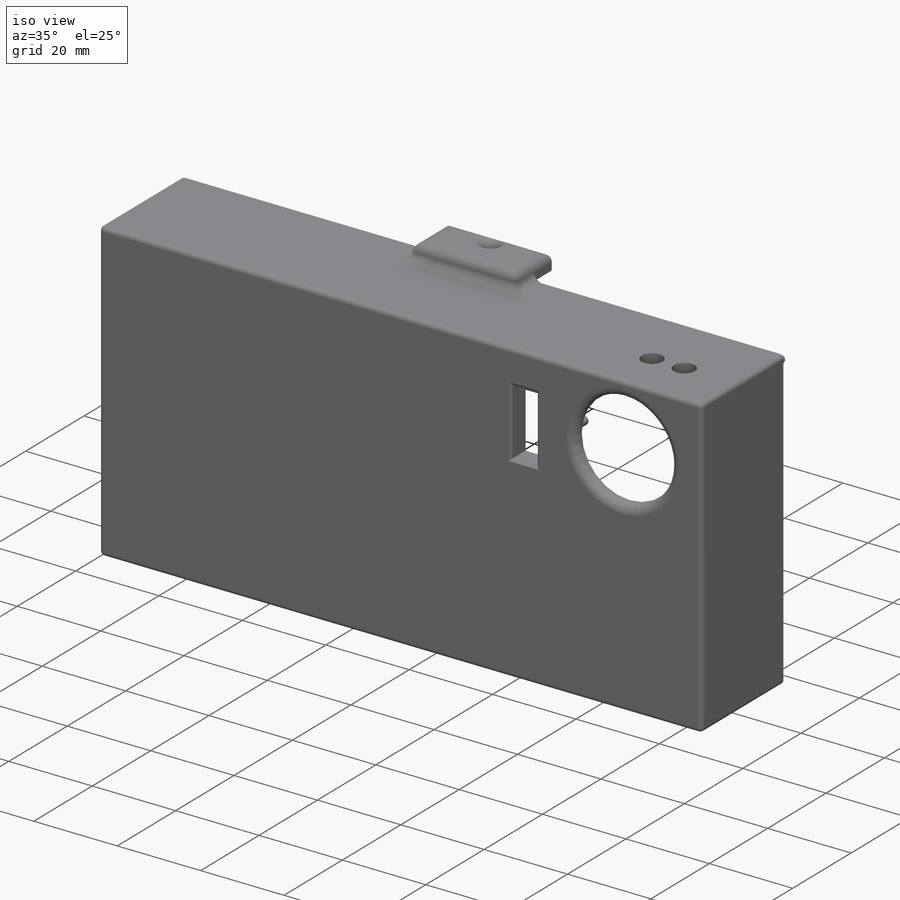
[diagram: iso view]
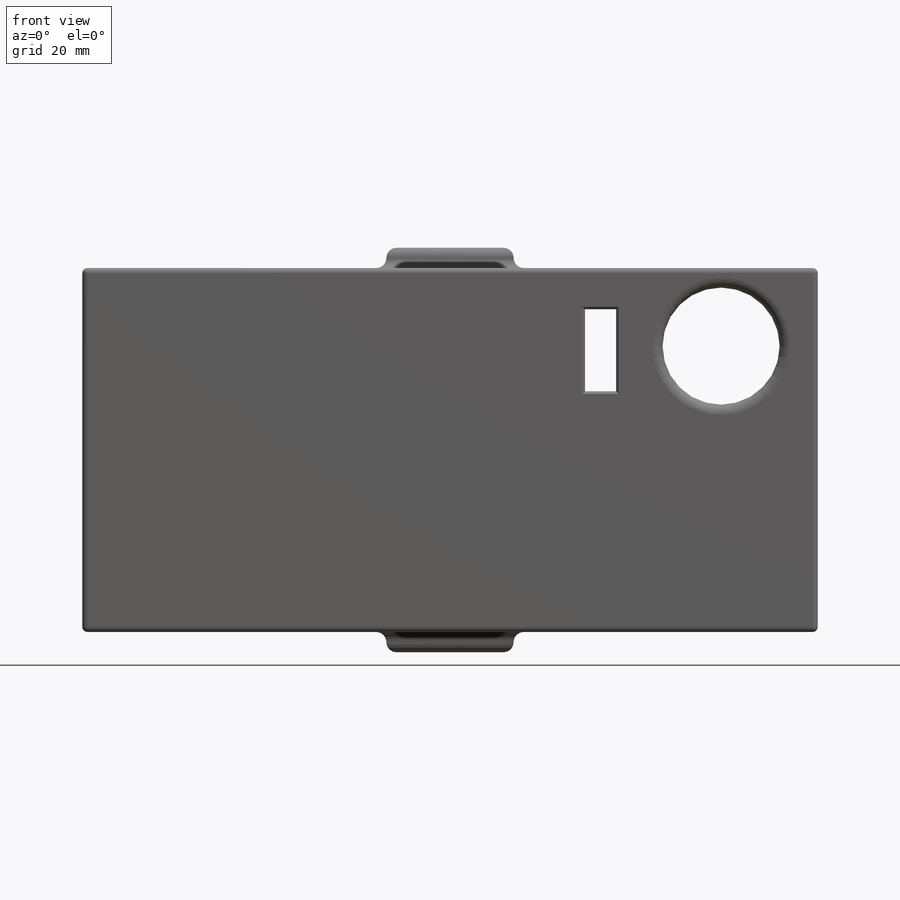
[diagram: front view]
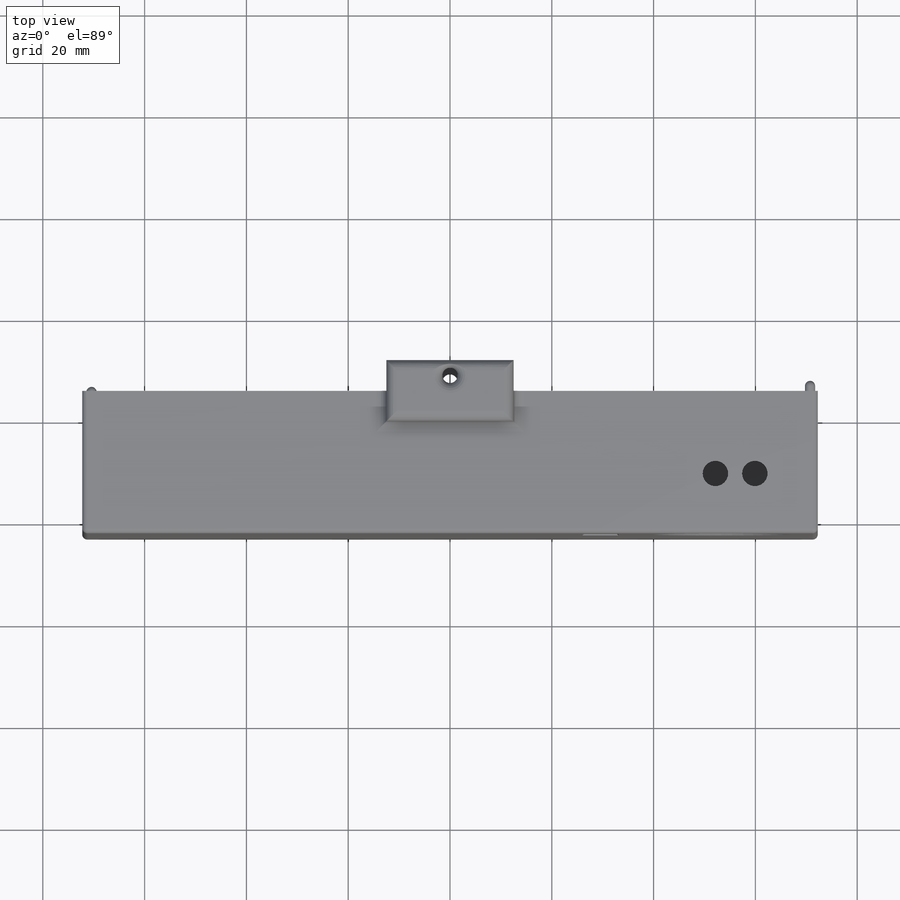
[diagram: top view]
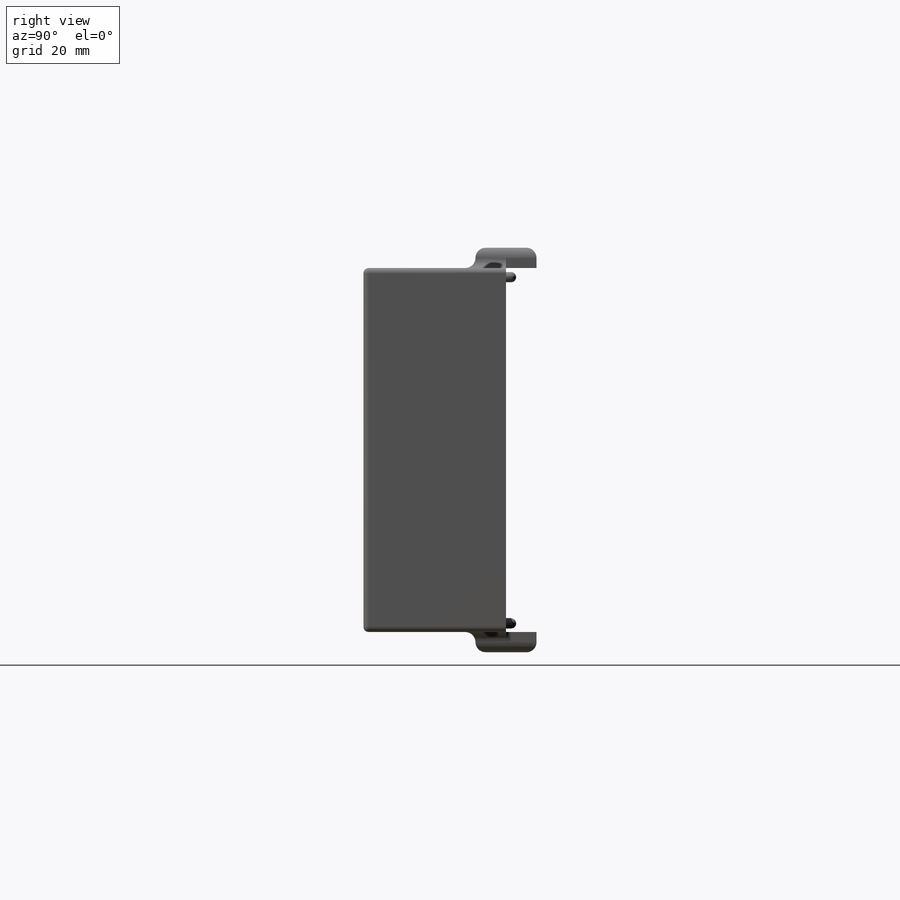
[diagram: right view]
SOLIDWORKS PART (.sldprt)
format: sldprt  version: not decoded by parser v0  size: 626,688 bytes
history: native  units: mm
features: sketch x15, fillet x11, extrude x10, cut_extrude x5, chamfer x4, plane x3, material x1 (+9 scaffold rows collapsed)
feature tree (58):
  scaffold x9  (default folders/planes/origin — collapsed)
  material  "Material <não especificado>"
  plane  "Plano frontal"
  plane  "Plano superior"
  plane  "Plano direito"
  sketch  "Esboço1"  dims[D1=71.5mm D2=144.52mm]
  extrude  "Ressalto-extrusão1"  Depth=3mm
  sketch  "Esboço2"
  extrude  "Ressalto-extrusão2"  Depth=25mm
  sketch  "Esboço3"
  extrude  "Ressalto-extrusão3"  Depth=17mm
  sketch  "Esboço4"
  extrude  "Ressalto-extrusão4"  Depth=5mm
  sketch  "Esboço5"
  extrude  "Ressalto-extrusão5"  Depth=2mm
  sketch  "Esboço6"  dims[D1=6.1mm D2=16.1mm D3=3.0mm D4=3.0mm]
  extrude  "Ressalto-extrusão6"  Depth=3mm
  sketch  "Esboço7"
  cut_extrude  "Corte-extrusão1"  [1 undecoded]
  sketch  "Esboço8"
  cut_extrude  "Corte-extrusão2"  [1 undecoded]
  sketch  "Esboço9"
  extrude  "Ressalto-extrusão7"  Depth=3mm
  sketch  "Esboço10"
  cut_extrude  "Corte-extrusão3"  Depth=3mm
  sketch  "Esboço11"
  cut_extrude  "Corte-extrusão4"  Depth=3mm
  fillet  "Filete1"  Radius=2mm
  chamfer  "Chanfro3"  Distance=0.5mm Angle=45deg
  chamfer  "Chanfro4"  Distance=1mm Angle=45deg
  chamfer  "Chanfro5"  Distance=1mm Angle=45deg
  chamfer  "Chanfro6"  Distance=0.5mm Angle=45deg
  fillet  "Filete2"  Radius=1mm
  fillet  "Filete3"  Radius=1mm
  fillet  "Filete4"  Radius=1mm
  fillet  "Filete9"  Radius=0.5mm
  fillet  "Filete10"  Radius=0.5mm
  sketch  "Esboço12"  dims[D1=2.0mm D2=2.0mm]
  extrude  "Ressalto-extrusão8"  Depth=2mm
  fillet  "Filete11"  Radius=1mm
  sketch  "Esboço13"  dims[D4=3.0mm D1=12.0mm D2=25.0mm D3=3.0mm]
  extrude  "Ressalto-extrusão9"  Depth=4mm
  sketch  "Esboço14"  dims[D1=12.0mm]
  extrude  "Ressalto-extrusão10"  Depth=4mm
  fillet  "Filete12"  Radius=2mm
  fillet  "Filete13"  Radius=2mm
  fillet  "Filete14"  Radius=2mm
  sketch  "Esboço15"  dims[D1=5.0mm D2=5.0mm]
  cut_extrude  "Corte-extrusão5"  Depth=10mm
  fillet  "Filete15"  Radius=1mm
decode coverage: 34 of 45 modeling features carry decoded parameters
note: 2 parameter values undecoded
note: suppression state not decoded; provenance and decode notes live in map.json
